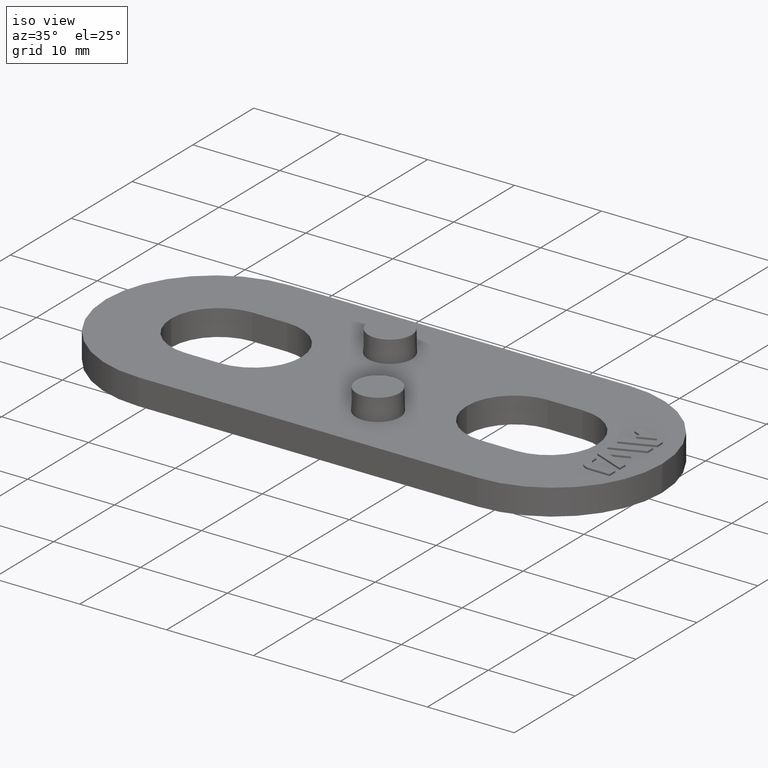
[diagram: clean part render]
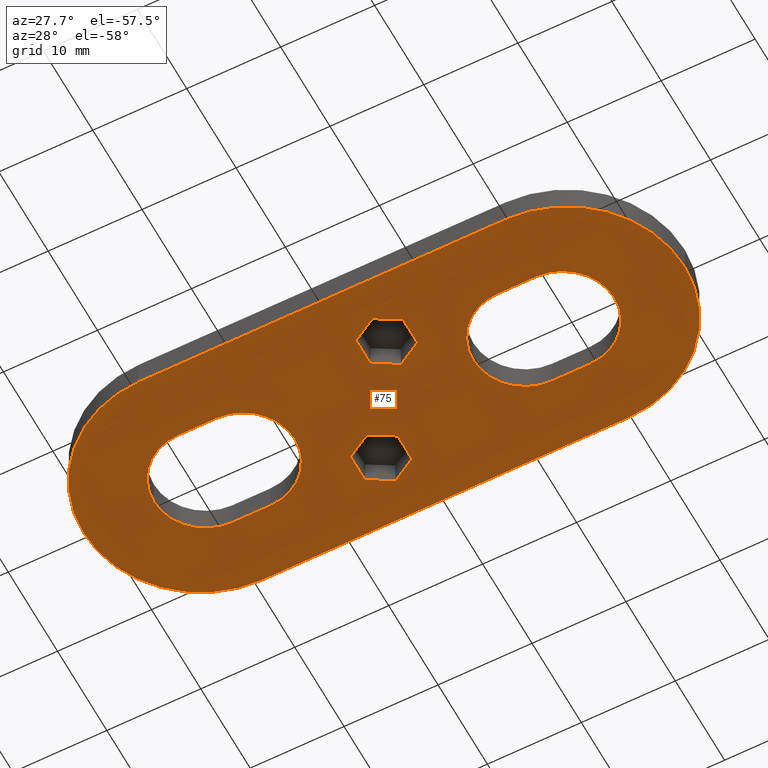
[diagram: tour spotlight — one face highlighted and labeled with its STEP entity id]
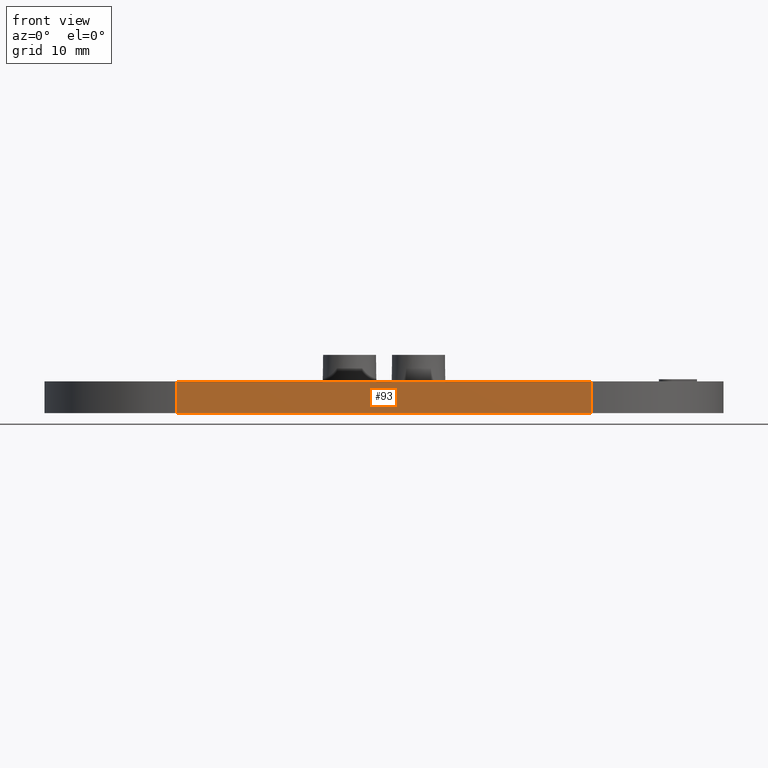
[diagram: tour spotlight — one face highlighted and labeled with its STEP entity id]
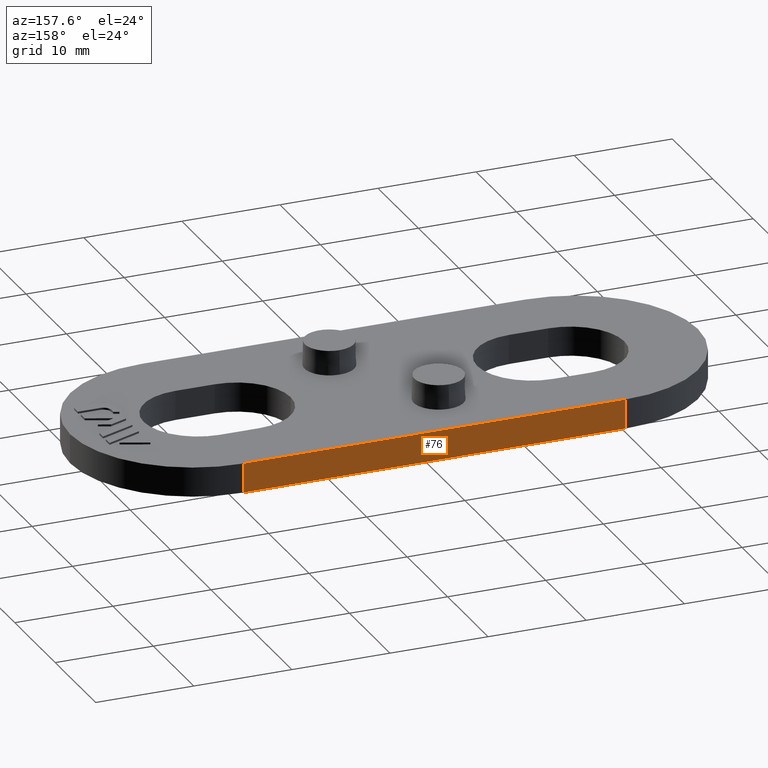
[diagram: tour spotlight — one face highlighted and labeled with its STEP entity id]
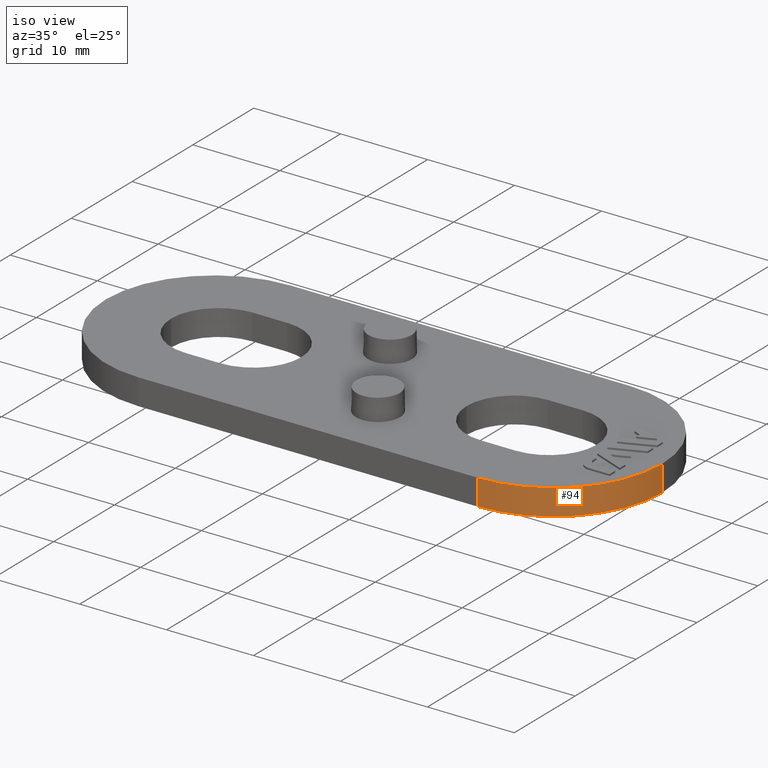
[diagram: tour spotlight — one face highlighted and labeled with its STEP entity id]
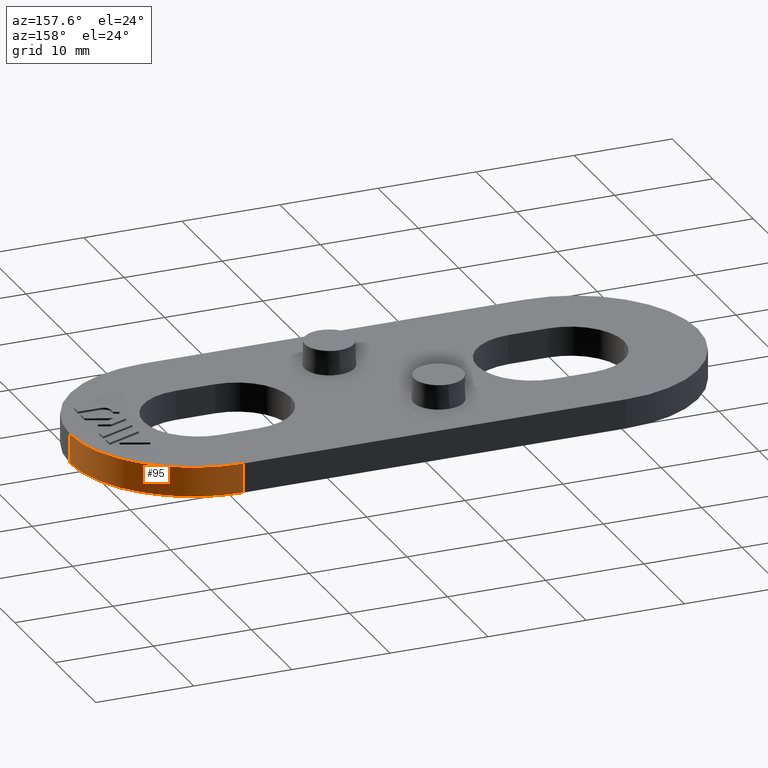
[diagram: tour spotlight — one face highlighted and labeled with its STEP entity id]
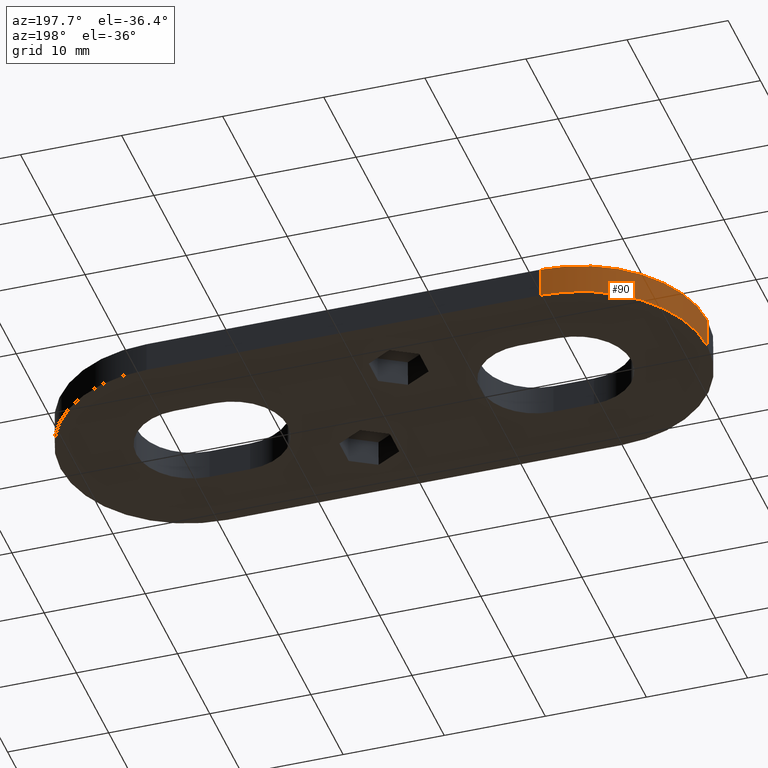
[diagram: tour spotlight — one face highlighted and labeled with its STEP entity id]
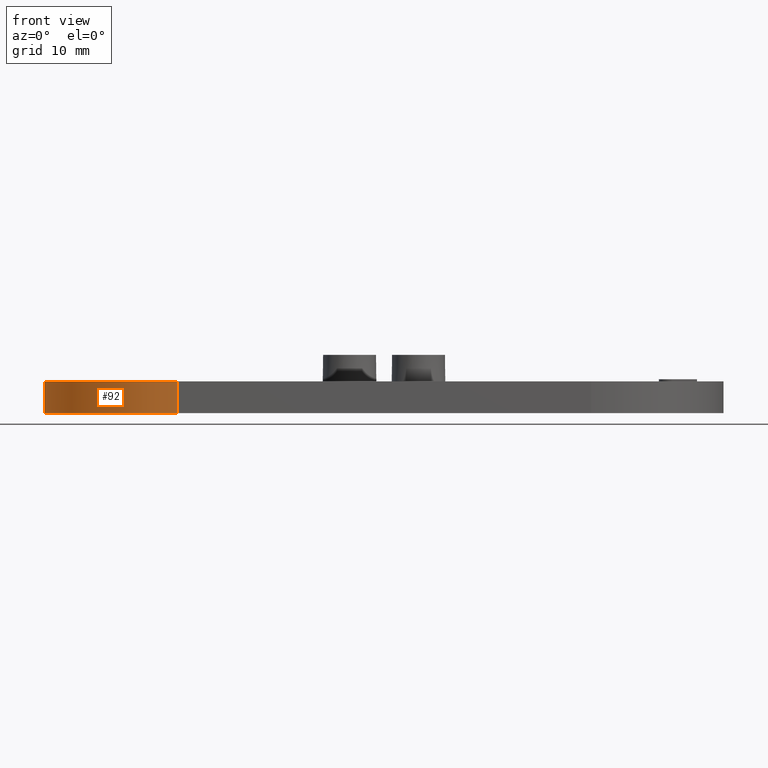
[diagram: tour spotlight — one face highlighted and labeled with its STEP entity id]
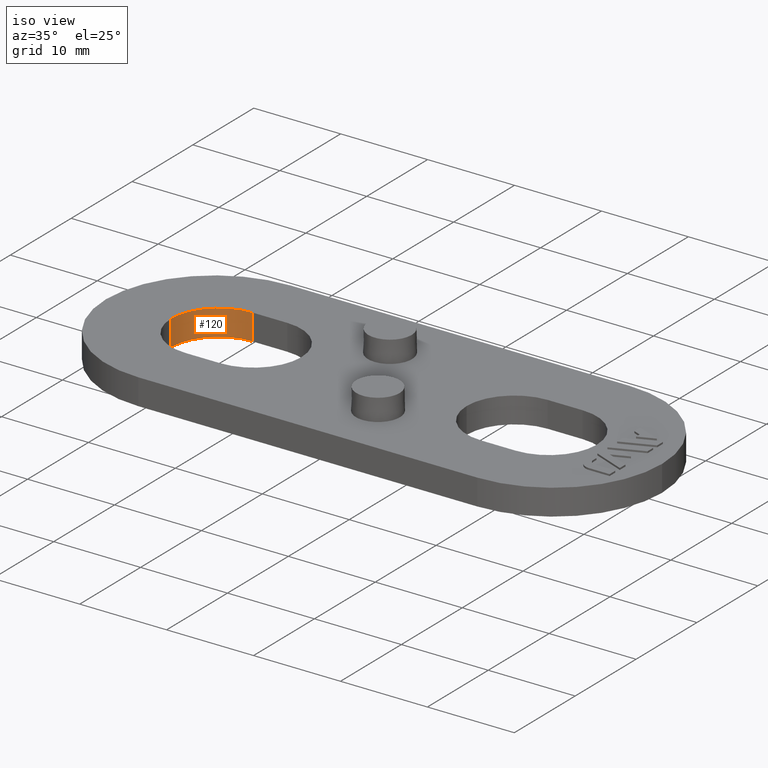
[diagram: tour spotlight — one face highlighted and labeled with its STEP entity id]
A machine part: a face-by-face anatomy tour. The part has 71 B-rep faces; the first image is the clean iso view, then the 8 largest visible faces are spotlighted one at a time (largest first), each with its STEP entity span.

Face 1 — auxiliary view, entity #75. In plain terms, the highlighted planar face has unit normal (0, -0, -1).
Definition (entity closure, byte-faithful):
#75 = ADVANCED_FACE( '', ( #147, #148, #149, #150, #151 ), #152, .T. );
#147 = FACE_BOUND( '', #304, .T. );
#148 = FACE_BOUND( '', #305, .T. );
#149 = FACE_BOUND( '', #306, .T. );
#150 = FACE_OUTER_BOUND( '', #307, .T. );
#151 = FACE_BOUND( '', #308, .T. );
#152 = PLANE( '', #309 );
#304 = EDGE_LOOP( '', ( #461, #462, #463, #464, #465, #466 ) );
#305 = EDGE_LOOP( '', ( #467, #468, #469, #470, #471, #472 ) );
#306 = EDGE_LOOP( '', ( #473, #474, #475, #476, #477, #478 ) );
#307 = EDGE_LOOP( '', ( #479, #480, #481, #482, #483, #484 ) );
#308 = EDGE_LOOP( '', ( #485, #486, #487, #488, #489, #490 ) );
#309 = AXIS2_PLACEMENT_3D( '', #491, #492, #493 );
#461 = ORIENTED_EDGE( '', *, *, #1030, .T. );
#462 = ORIENTED_EDGE( '', *, *, #1031, .T. );
#463 = ORIENTED_EDGE( '', *, *, #1032, .T. );
#464 = ORIENTED_EDGE( '', *, *, #1033, .T. );
#465 = ORIENTED_EDGE( '', *, *, #1034, .T. );
#466 = ORIENTED_EDGE( '', *, *, #1035, .T. );
#467 = ORIENTED_EDGE( '', *, *, #1036, .F. );
#468 = ORIENTED_EDGE( '', *, *, #1037, .F. );
#469 = ORIENTED_EDGE( '', *, *, #1038, .F. );
#470 = ORIENTED_EDGE( '', *, *, #1039, .F. );
#471 = ORIENTED_EDGE( '', *, *, #1040, .F. );
#472 = ORIENTED_EDGE( '', *, *, #1041, .F. );
#473 = ORIENTED_EDGE( '', *, *, #1042, .T. );
#474 = ORIENTED_EDGE( '', *, *, #1043, .T. );
#475 = ORIENTED_EDGE( '', *, *, #1044, .T. );
#476 = ORIENTED_EDGE( '', *, *, #1045, .T. );
#477 = ORIENTED_EDGE( '', *, *, #1046, .T. );
#478 = ORIENTED_EDGE( '', *, *, #1047, .T. );
#479 = ORIENTED_EDGE( '', *, *, #1048, .T. );
#480 = ORIENTED_EDGE( '', *, *, #1049, .T. );
#481 = ORIENTED_EDGE( '', *, *, #1050, .T. );
#482 = ORIENTED_EDGE( '', *, *, #1051, .T. );
#483 = ORIENTED_EDGE( '', *, *, #1052, .T. );
#484 = ORIENTED_EDGE( '', *, *, #1053, .T. );
#485 = ORIENTED_EDGE( '', *, *, #1054, .T. );
#486 = ORIENTED_EDGE( '', *, *, #1055, .T. );
#487 = ORIENTED_EDGE( '', *, *, #1056, .T. );
#488 = ORIENTED_EDGE( '', *, *, #1057, .T. );
#489 = ORIENTED_EDGE( '', *, *, #1058, .T. );
#490 = ORIENTED_EDGE( '', *, *, #1059, .T. );
#491 = CARTESIAN_POINT( '', ( 19.5000000000000, 0.000000000000000, -2.60208521396521E-015 ) );
#492 = DIRECTION( '', ( 0.000000000000000, -6.12303176911189E-017, -1.00000000000000 ) );
#493 = DIRECTION( '', ( 8.93897586159986E-016, 1.00000000000000, -6.12303176911189E-017 ) );
#1030 = EDGE_CURVE( '', #1208, #1209, #1210, .F. );
#1031 = EDGE_CURVE( '', #1209, #1211, #1212, .F. );
#1032 = EDGE_CURVE( '', #1211, #1213, #1214, .F. );
#1033 = EDGE_CURVE( '', #1213, #1215, #1216, .F. );
#1034 = EDGE_CURVE( '', #1215, #1217, #1218, .F. );
#1035 = EDGE_CURVE( '', #1217, #1208, #1219, .F. );
#1036 = EDGE_CURVE( '', #1220, #1221, #1222, .F. );
#1037 = EDGE_CURVE( '', #1223, #1220, #1224, .T. );
#1038 = EDGE_CURVE( '', #1225, #1223, #1226, .F. );
#1039 = EDGE_CURVE( '', #1227, #1225, #1228, .F. );
#1040 = EDGE_CURVE( '', #1229, #1227, #1230, .T. );
#1041 = EDGE_CURVE( '', #1221, #1229, #1231, .F. );
#1042 = EDGE_CURVE( '', #1232, #1233, #1234, .T. );
#1043 = EDGE_CURVE( '', #1233, #1235, #1236, .F. );
#1044 = EDGE_CURVE( '', #1235, #1237, #1238, .T. );
#1045 = EDGE_CURVE( '', #1237, #1239, #1240, .T. );
#1046 = EDGE_CURVE( '', #1239, #1241, #1242, .T. );
#1047 = EDGE_CURVE( '', #1241, #1232, #1243, .T. );
#1048 = EDGE_CURVE( '', #1244, #1245, #1246, .T. );
#1049 = EDGE_CURVE( '', #1245, #1247, #1248, .T. );
#1050 = EDGE_CURVE( '', #1247, #1249, #1250, .T. );
#1051 = EDGE_CURVE( '', #1249, #1251, #1252, .T. );
#1052 = EDGE_CURVE( '', #1251, #1253, #1254, .T. );
#1053 = EDGE_CURVE( '', #1253, #1244, #1255, .T. );
#1054 = EDGE_CURVE( '', #1256, #1257, #1258, .F. );
#1055 = EDGE_CURVE( '', #1257, #1259, #1260, .F. );
#1056 = EDGE_CURVE( '', #1259, #1261, #1262, .F. );
#1057 = EDGE_CURVE( '', #1261, #1263, #1264, .F. );
#1058 = EDGE_CURVE( '', #1263, #1265, #1266, .F. );
#1059 = EDGE_CURVE( '', #1265, #1256, #1267, .F. );
#1208 = VERTEX_POINT( '', #1506 );
#1209 = VERTEX_POINT( '', #1507 );
#1210 = LINE( '', #1508, #1509 );
#1211 = VERTEX_POINT( '', #1510 );
#1212 = LINE( '', #1511, #1512 );
#1213 = VERTEX_POINT( '', #1513 );
#1214 = LINE( '', #1514, #1515 );
#1215 = VERTEX_POINT( '', #1516 );
#1216 = LINE( '', #1517, #1518 );
#1217 = VERTEX_POINT( '', #1519 );
#1218 = LINE( '', #1520, #1521 );
#1219 = LINE( '', #1522, #1523 );
#1220 = VERTEX_POINT( '', #1524 );
#1221 = VERTEX_POINT( '', #1525 );
#1222 = CIRCLE( '', #1526, 5.50000000000000 );
#1223 = VERTEX_POINT( '', #1527 );
#1224 = LINE( '', #1528, #1529 );
#1225 = VERTEX_POINT( '', #1530 );
#1226 = CIRCLE( '', #1531, 5.50000000000000 );
#1227 = VERTEX_POINT( '', #1532 );
#1228 = CIRCLE( '', #1533, 5.50000000000000 );
#1229 = VERTEX_POINT( '', #1534 );
#1230 = LINE( '', #1535, #1536 );
#1231 = CIRCLE( '', #1537, 5.50000000000000 );
#1232 = VERTEX_POINT( '', #1538 );
#1233 = VERTEX_POINT( '', #1539 );
#1234 = CIRCLE( '', #1540, 5.50000000000000 );
#1235 = VERTEX_POINT( '', #1541 );
#1236 = LINE( '', #1542, #1543 );
#1237 = VERTEX_POINT( '', #1544 );
#1238 = CIRCLE( '', #1545, 5.50000000000000 );
#1239 = VERTEX_POINT( '', #1546 );
#1240 = CIRCLE( '', #1547, 5.50000000000000 );
#1241 = VERTEX_POINT( '', #1548 );
#1242 = LINE( '', #1549, #1550 );
#1243 = CIRCLE( '', #1551, 5.50000000000000 );
#1244 = VERTEX_POINT( '', #1552 );
#1245 = VERTEX_POINT( '', #1553 );
#1246 = LINE( '', #1554, #1555 );
#1247 = VERTEX_POINT( '', #1556 );
#1248 = CIRCLE( '', #1557, 12.5000000000000 );
#1249 = VERTEX_POINT( '', #1558 );
#1250 = CIRCLE( '', #1559, 12.5000000000000 );
#1251 = VERTEX_POINT( '', #1560 );
#1252 = LINE( '', #1561, #1562 );
#1253 = VERTEX_POINT( '', #1563 );
#1254 = CIRCLE( '', #1564, 12.5000000000000 );
#1255 = CIRCLE( '', #1565, 12.5000000000000 );
#1256 = VERTEX_POINT( '', #1566 );
#1257 = VERTEX_POINT( '', #1567 );
#1258 = LINE( '', #1568, #1569 );
#1259 = VERTEX_POINT( '', #1570 );
#1260 = LINE( '', #1571, #1572 );
#1261 = VERTEX_POINT( '', #1573 );
#1262 = LINE( '', #1574, #1575 );
#1263 = VERTEX_POINT( '', #1576 );
#1264 = LINE( '', #1577, #1578 );
#1265 = VERTEX_POINT( '', #1579 );
#1266 = LINE( '', #1580, #1581 );
#1267 = LINE( '', #1582, #1583 );
#1506 = CARTESIAN_POINT( '', ( -5.75000000000000, 7.07254079757291, -2.60208521396521E-015 ) );
#1507 = CARTESIAN_POINT( '', ( -5.75000000000000, 4.18578945162478, -2.60208521396521E-015 ) );
#1508 = CARTESIAN_POINT( '', ( -5.75000000000000, 2.74241377865072, -2.60208521396521E-015 ) );
#1509 = VECTOR( '', #1950, 1000.00000000000 );
#1510 = CARTESIAN_POINT( '', ( -3.25000000000000, 2.74241377865072, -2.60208521396521E-015 ) );
#1511 = CARTESIAN_POINT( '', ( -3.25000000000000, 2.74241377865072, -2.60208521396521E-015 ) );
#1512 = VECTOR( '', #1951, 1000.00000000000 );
#1513 = CARTESIAN_POINT( '', ( -0.750000000000000, 4.18578945162478, -2.60208521396521E-015 ) );
#1514 = CARTESIAN_POINT( '', ( -3.25000000000000, 2.74241377865072, -2.60208521396521E-015 ) );
#1515 = VECTOR( '', #1952, 1000.00000000000 );
#1516 = CARTESIAN_POINT( '', ( -0.749999999999998, 7.07254079757291, -2.60208521396521E-015 ) );
#1517 = CARTESIAN_POINT( '', ( -0.750000000000001, 2.74241377865072, -2.60208521396521E-015 ) );
#1518 = VECTOR( '', #1953, 1000.00000000000 );
#1519 = CARTESIAN_POINT( '', ( -3.25000000000000, 8.51591647054697, -2.60208521396521E-015 ) );
#1520 = CARTESIAN_POINT( '', ( -0.750000000000000, 7.07254079757291, -2.60208521396521E-015 ) );
#1521 = VECTOR( '', #1954, 1000.00000000000 );
#1522 = CARTESIAN_POINT( '', ( -5.75000000000000, 7.07254079757291, -2.60208521396521E-015 ) );
#1523 = VECTOR( '', #1955, 1000.00000000000 );
#1524 = CARTESIAN_POINT( '', ( 19.0000000000000, 5.50000000000000, -2.60208521396521E-015 ) );
#1525 = CARTESIAN_POINT( '', ( 24.5000000000000, 0.000000000000000, -2.60208521396521E-015 ) );
#1526 = AXIS2_PLACEMENT_3D( '', #1956, #1957, #1958 );
#1527 = CARTESIAN_POINT( '', ( 15.0000000000000, 5.50000000000000, -2.60208521396521E-015 ) );
#1528 = CARTESIAN_POINT( '', ( 19.0000000000000, 5.50000000000000, -2.60208521396521E-015 ) );
#1529 = VECTOR( '', #1959, 1000.00000000000 );
#1530 = CARTESIAN_POINT( '', ( 9.50000000000000, 0.000000000000000, -2.60208521396521E-015 ) );
#1531 = AXIS2_PLACEMENT_3D( '', #1960, #1961, #1962 );
#1532 = CARTESIAN_POINT( '', ( 15.0000000000000, -5.49999999999999, -2.60208521396521E-015 ) );
#1533 = AXIS2_PLACEMENT_3D( '', #1963, #1964, #1965 );
#1534 = CARTESIAN_POINT( '', ( 19.0000000000000, -5.49999999999999, -2.60208521396521E-015 ) );
#1535 = CARTESIAN_POINT( '', ( 15.0000000000000, -5.49999999999999, -2.60208521396521E-015 ) );
#1536 = VECTOR( '', #1966, 1000.00000000000 );
#1537 = AXIS2_PLACEMENT_3D( '', #1967, #1968, #1969 );
#1538 = CARTESIAN_POINT( '', ( -9.50000000000000, -6.93889390390723E-015, -2.60208521396521E-015 ) );
#1539 = CARTESIAN_POINT( '', ( -15.0000000000000, 5.49999999999999, -2.60208521396521E-015 ) );
#1540 = AXIS2_PLACEMENT_3D( '', #1970, #1971, #1972 );
#1541 = CARTESIAN_POINT( '', ( -19.0000000000000, 5.50000000000000, -2.60208521396521E-015 ) );
#1542 = CARTESIAN_POINT( '', ( 19.5000000000000, 5.49999999999996, -2.60208521396521E-015 ) );
#1543 = VECTOR( '', #1973, 1000.00000000000 );
#1544 = CARTESIAN_POINT( '', ( -24.5000000000000, 0.000000000000000, -2.60208521396521E-015 ) );
#1545 = AXIS2_PLACEMENT_3D( '', #1974, #1975, #1976 );
#1546 = CARTESIAN_POINT( '', ( -19.0000000000000, -5.49999999999999, -2.60208521396521E-015 ) );
#1547 = AXIS2_PLACEMENT_3D( '', #1977, #1978, #1979 );
#1548 = CARTESIAN_POINT( '', ( -15.0000000000000, -5.50000000000001, -2.60208521396521E-015 ) );
#1549 = CARTESIAN_POINT( '', ( 19.5000000000000, -5.50000000000003, -2.60208521396521E-015 ) );
#1550 = VECTOR( '', #1980, 1000.00000000000 );
#1551 = AXIS2_PLACEMENT_3D( '', #1981, #1982, #1983 );
#1552 = CARTESIAN_POINT( '', ( -19.5000000000000, 12.5000000000000, -2.60208521396521E-015 ) );
#1553 = CARTESIAN_POINT( '', ( 19.5000000000000, 12.5000000000000, -2.60208521396521E-015 ) );
#1554 = CARTESIAN_POINT( '', ( -19.5000000000000, 12.5000000000000, -2.60208521396521E-015 ) );
#1555 = VECTOR( '', #1984, 1000.00000000000 );
#1556 = CARTESIAN_POINT( '', ( 32.0000000000000, 0.000000000000000, -2.60208521396521E-015 ) );
#1557 = AXIS2_PLACEMENT_3D( '', #1985, #1986, #1987 );
#1558 = CARTESIAN_POINT( '', ( 19.5000000000000, -12.5000000000000, -2.60208521396521E-015 ) );
#1559 = AXIS2_PLACEMENT_3D( '', #1988, #1989, #1990 );
#1560 = CARTESIAN_POINT( '', ( -19.5000000000000, -12.5000000000000, -2.60208521396521E-015 ) );
#1561 = CARTESIAN_POINT( '', ( 19.5000000000000, -12.5000000000000, -2.60208521396521E-015 ) );
#1562 = VECTOR( '', #1991, 1000.00000000000 );
#1563 = CARTESIAN_POINT( '', ( -32.0000000000000, -6.93889390390723E-015, -2.60208521396521E-015 ) );
#1564 = AXIS2_PLACEMENT_3D( '', #1992, #1993, #1994 );
#1565 = AXIS2_PLACEMENT_3D( '', #1995, #1996, #1997 );
#1566 = CARTESIAN_POINT( '', ( 0.750000000000001, -7.07254079757293, -2.60208521396521E-015 ) );
#1567 = CARTESIAN_POINT( '', ( 3.25000000000000, -8.51591647054699, -2.60208521396521E-015 ) );
#1568 = CARTESIAN_POINT( '', ( -6.50000000000000, -2.88675134594814, -2.60208521396521E-015 ) );
#1569 = VECTOR( '', #1998, 1000.00000000000 );
#1570 = CARTESIAN_POINT( '', ( 5.75000000000000, -7.07254079757293, -2.60208521396521E-015 ) );
#1571 = CARTESIAN_POINT( '', ( 3.25000000000000, -8.51591647054699, -2.60208521396521E-015 ) );
#1572 = VECTOR( '', #1999, 1000.00000000000 );
#1573 = CARTESIAN_POINT( '', ( 5.75000000000000, -4.18578945162479, -2.60208521396521E-015 ) );
#1574 = CARTESIAN_POINT( '', ( 5.75000000000000, 2.74241377865073, -2.60208521396521E-015 ) );
#1575 = VECTOR( '', #2000, 1000.00000000000 );
#1576 = CARTESIAN_POINT( '', ( 3.25000000000000, -2.74241377865073, -2.60208521396521E-015 ) );
#1577 = CARTESIAN_POINT( '', ( -4.00000000000000, 1.44337567297406, -2.60208521396521E-015 ) );
#1578 = VECTOR( '', #2001, 1000.00000000000 );
#1579 = CARTESIAN_POINT( '', ( 0.750000000000002, -4.18578945162479, -2.60208521396521E-015 ) );
#1580 = CARTESIAN_POINT( '', ( 0.749999999999998, -4.18578945162479, -2.60208521396521E-015 ) );
#1581 = VECTOR( '', #2002, 1000.00000000000 );
#1582 = CARTESIAN_POINT( '', ( 0.750000000000002, 2.74241377865072, -2.60208521396521E-015 ) );
#1583 = VECTOR( '', #2003, 1000.00000000000 );
#1950 = DIRECTION( '', ( -2.77555756156289E-016, 1.00000000000000, -6.12303176911189E-017 ) );
#1951 = DIRECTION( '', ( -0.866025403784439, 0.500000000000000, -3.06151588455594E-017 ) );
#1952 = DIRECTION( '', ( -0.866025403784439, -0.500000000000000, 3.06151588455594E-017 ) );
#1953 = DIRECTION( '', ( -4.99600361081321E-016, -1.00000000000000, 6.12303176911189E-017 ) );
#1954 = DIRECTION( '', ( 0.866025403784439, -0.500000000000000, 3.06151588455594E-017 ) );
#1955 = DIRECTION( '', ( 0.866025403784438, 0.500000000000000, -3.06151588455595E-017 ) );
#1956 = CARTESIAN_POINT( '', ( 19.0000000000000, 0.000000000000000, -2.60208521396521E-015 ) );
#1957 = DIRECTION( '', ( 0.000000000000000, 6.12303176911189E-017, 1.00000000000000 ) );
#1958 = DIRECTION( '', ( 0.000000000000000, -1.00000000000000, 6.12303176911189E-017 ) );
#1959 = DIRECTION( '', ( 1.00000000000000, 5.78241158658936E-017, -3.54058898467673E-033 ) );
#1960 = CARTESIAN_POINT( '', ( 15.0000000000000, 0.000000000000000, -2.60208521396521E-015 ) );
#1961 = DIRECTION( '', ( 0.000000000000000, 6.12303176911189E-017, 1.00000000000000 ) );
#1962 = DIRECTION( '', ( 0.000000000000000, -1.00000000000000, 6.12303176911189E-017 ) );
#1963 = CARTESIAN_POINT( '', ( 15.0000000000000, 0.000000000000000, -2.60208521396521E-015 ) );
#1964 = DIRECTION( '', ( 0.000000000000000, 6.12303176911189E-017, 1.00000000000000 ) );
#1965 = DIRECTION( '', ( 0.000000000000000, -1.00000000000000, 6.12303176911189E-017 ) );
#1966 = DIRECTION( '', ( -1.00000000000000, -5.78241158658936E-017, 3.54058898467673E-033 ) );
#1967 = CARTESIAN_POINT( '', ( 19.0000000000000, 0.000000000000000, -2.60208521396521E-015 ) );
#1968 = DIRECTION( '', ( 0.000000000000000, 6.12303176911189E-017, 1.00000000000000 ) );
#1969 = DIRECTION( '', ( 0.000000000000000, -1.00000000000000, 6.12303176911189E-017 ) );
#1970 = CARTESIAN_POINT( '', ( -15.0000000000000, 0.000000000000000, -2.60208521396521E-015 ) );
#1971 = DIRECTION( '', ( 0.000000000000000, 6.12303176911189E-017, 1.00000000000000 ) );
#1972 = DIRECTION( '', ( 0.000000000000000, -1.00000000000000, 6.12303176911189E-017 ) );
#1973 = DIRECTION( '', ( 1.00000000000000, -8.93897586159986E-016, 5.47336331839003E-032 ) );
#1974 = CARTESIAN_POINT( '', ( -19.0000000000000, -6.93889390390723E-015, -2.60208521396521E-015 ) );
#1975 = DIRECTION( '', ( 0.000000000000000, 6.12303176911189E-017, 1.00000000000000 ) );
#1976 = DIRECTION( '', ( 0.000000000000000, -1.00000000000000, 6.12303176911189E-017 ) );
#1977 = CARTESIAN_POINT( '', ( -19.0000000000000, 0.000000000000000, -2.60208521396521E-015 ) );
#1978 = DIRECTION( '', ( 0.000000000000000, 6.12303176911189E-017, 1.00000000000000 ) );
#1979 = DIRECTION( '', ( 0.000000000000000, -1.00000000000000, 6.12303176911189E-017 ) );
#1980 = DIRECTION( '', ( 1.00000000000000, -8.93897586159986E-016, 5.47336331839003E-032 ) );
#1981 = CARTESIAN_POINT( '', ( -15.0000000000000, 0.000000000000000, -2.60208521396521E-015 ) );
#1982 = DIRECTION( '', ( 0.000000000000000, 6.12303176911189E-017, 1.00000000000000 ) );
#1983 = DIRECTION( '', ( 0.000000000000000, -1.00000000000000, 6.12303176911189E-017 ) );
#1984 = DIRECTION( '', ( 1.00000000000000, 0.000000000000000, 0.000000000000000 ) );
#1985 = CARTESIAN_POINT( '', ( 19.5000000000000, 0.000000000000000, -2.60208521396521E-015 ) );
#1986 = DIRECTION( '', ( 0.000000000000000, -6.12303176911189E-017, -1.00000000000000 ) );
#1987 = DIRECTION( '', ( 6.12303176911188E-017, 1.00000000000000, -6.12303176911189E-017 ) );
#1988 = CARTESIAN_POINT( '', ( 19.5000000000000, 0.000000000000000, -2.60208521396521E-015 ) );
#1989 = DIRECTION( '', ( 5.60519385729927E-049, -6.12303176911189E-017, -1.00000000000000 ) );
#1990 = DIRECTION( '', ( 6.12303176911191E-017, 1.00000000000000, -6.12303176911189E-017 ) );
#1991 = DIRECTION( '', ( -1.00000000000000, 0.000000000000000, 0.000000000000000 ) );
#1992 = CARTESIAN_POINT( '', ( -19.5000000000000, -6.93889390390723E-015, -2.60208521396521E-015 ) );
#1993 = DIRECTION( '', ( 0.000000000000000, -6.12303176911189E-017, -1.00000000000000 ) );
#1994 = DIRECTION( '', ( -2.16325438465170E-016, 1.00000000000000, -6.12303176911189E-017 ) );
#1995 = CARTESIAN_POINT( '', ( -19.5000000000000, 0.000000000000000, -2.60208521396521E-015 ) );
#1996 = DIRECTION( '', ( 0.000000000000000, -6.12303176911189E-017, -1.00000000000000 ) );
#1997 = DIRECTION( '', ( -2.16325438465170E-016, 1.00000000000000, -6.12303176911189E-017 ) );
#1998 = DIRECTION( '', ( -0.866025403784439, 0.500000000000000, -3.06151588455594E-017 ) );
#1999 = DIRECTION( '', ( -0.866025403784439, -0.500000000000000, 3.06151588455594E-017 ) );
#2000 = DIRECTION( '', ( 6.10622663543836E-016, -1.00000000000000, 6.12303176911189E-017 ) );
#2001 = DIRECTION( '', ( 0.866025403784439, -0.500000000000000, 3.06151588455594E-017 ) );
#2002 = DIRECTION( '', ( 0.866025403784439, 0.500000000000000, -3.06151588455594E-017 ) );
#2003 = DIRECTION( '', ( 5.55111512312578E-017, 1.00000000000000, -6.12303176911189E-017 ) );

Face 2 — front view, entity #93. In plain terms, the highlighted planar face has unit normal (0, 1, -0).
Definition (entity closure, byte-faithful):
#93 = ADVANCED_FACE( '', ( #196 ), #197, .F. );
#196 = FACE_OUTER_BOUND( '', #353, .T. );
#197 = PLANE( '', #354 );
#353 = EDGE_LOOP( '', ( #661, #662, #663, #664 ) );
#354 = AXIS2_PLACEMENT_3D( '', #665, #666, #667 );
#661 = ORIENTED_EDGE( '', *, *, #1106, .T. );
#662 = ORIENTED_EDGE( '', *, *, #1133, .F. );
#663 = ORIENTED_EDGE( '', *, *, #1051, .F. );
#664 = ORIENTED_EDGE( '', *, *, #1134, .T. );
#665 = CARTESIAN_POINT( '', ( 19.5000000000000, -12.5000000000000, -2.60208521396521E-015 ) );
#666 = DIRECTION( '', ( 0.000000000000000, 1.00000000000000, -6.12303176911189E-017 ) );
#667 = DIRECTION( '', ( 1.00000000000000, 0.000000000000000, 0.000000000000000 ) );
#1051 = EDGE_CURVE( '', #1249, #1251, #1252, .T. );
#1106 = EDGE_CURVE( '', #1357, #1355, #1358, .T. );
#1133 = EDGE_CURVE( '', #1251, #1355, #1397, .T. );
#1134 = EDGE_CURVE( '', #1249, #1357, #1398, .T. );
#1249 = VERTEX_POINT( '', #1558 );
#1251 = VERTEX_POINT( '', #1560 );
#1252 = LINE( '', #1561, #1562 );
#1355 = VERTEX_POINT( '', #1706 );
#1357 = VERTEX_POINT( '', #1708 );
#1358 = LINE( '', #1709, #1710 );
#1397 = LINE( '', #1768, #1769 );
#1398 = LINE( '', #1770, #1771 );
#1558 = CARTESIAN_POINT( '', ( 19.5000000000000, -12.5000000000000, -2.60208521396521E-015 ) );
#1560 = CARTESIAN_POINT( '', ( -19.5000000000000, -12.5000000000000, -2.60208521396521E-015 ) );
#1561 = CARTESIAN_POINT( '', ( 19.5000000000000, -12.5000000000000, -2.60208521396521E-015 ) );
#1562 = VECTOR( '', #1991, 1000.00000000000 );
#1706 = CARTESIAN_POINT( '', ( -19.5000000000000, -12.5000000000000, 3.00000000000000 ) );
#1708 = CARTESIAN_POINT( '', ( 19.5000000000000, -12.5000000000000, 3.00000000000000 ) );
#1709 = CARTESIAN_POINT( '', ( 19.5000000000000, -12.5000000000000, 3.00000000000000 ) );
#1710 = VECTOR( '', #2072, 1000.00000000000 );
#1768 = CARTESIAN_POINT( '', ( -19.5000000000000, -12.5000000000000, -2.60208521396521E-015 ) );
#1769 = VECTOR( '', #2113, 1000.00000000000 );
#1770 = CARTESIAN_POINT( '', ( 19.5000000000000, -12.5000000000000, -2.60208521396521E-015 ) );
#1771 = VECTOR( '', #2114, 1000.00000000000 );
#1991 = DIRECTION( '', ( -1.00000000000000, 0.000000000000000, 0.000000000000000 ) );
#2072 = DIRECTION( '', ( -1.00000000000000, 0.000000000000000, 0.000000000000000 ) );
#2113 = DIRECTION( '', ( 0.000000000000000, 6.12303176911189E-017, 1.00000000000000 ) );
#2114 = DIRECTION( '', ( 0.000000000000000, 6.12303176911189E-017, 1.00000000000000 ) );

Face 3 — auxiliary view, entity #76. In plain terms, the highlighted planar face has unit normal (0, -1, 0).
Definition (entity closure, byte-faithful):
#76 = ADVANCED_FACE( '', ( #153 ), #154, .F. );
#153 = FACE_OUTER_BOUND( '', #310, .T. );
#154 = PLANE( '', #311 );
#310 = EDGE_LOOP( '', ( #494, #495, #496, #497 ) );
#311 = AXIS2_PLACEMENT_3D( '', #498, #499, #500 );
#494 = ORIENTED_EDGE( '', *, *, #1060, .T. );
#495 = ORIENTED_EDGE( '', *, *, #1061, .F. );
#496 = ORIENTED_EDGE( '', *, *, #1048, .F. );
#497 = ORIENTED_EDGE( '', *, *, #1062, .T. );
#498 = CARTESIAN_POINT( '', ( -19.5000000000000, 12.5000000000000, -2.60208521396521E-015 ) );
#499 = DIRECTION( '', ( 0.000000000000000, -1.00000000000000, 6.12303176911189E-017 ) );
#500 = DIRECTION( '', ( -1.00000000000000, 0.000000000000000, 0.000000000000000 ) );
#1048 = EDGE_CURVE( '', #1244, #1245, #1246, .T. );
#1060 = EDGE_CURVE( '', #1268, #1269, #1270, .T. );
#1061 = EDGE_CURVE( '', #1245, #1269, #1271, .T. );
#1062 = EDGE_CURVE( '', #1244, #1268, #1272, .T. );
#1244 = VERTEX_POINT( '', #1552 );
#1245 = VERTEX_POINT( '', #1553 );
#1246 = LINE( '', #1554, #1555 );
#1268 = VERTEX_POINT( '', #1584 );
#1269 = VERTEX_POINT( '', #1585 );
#1270 = LINE( '', #1586, #1587 );
#1271 = LINE( '', #1588, #1589 );
#1272 = LINE( '', #1590, #1591 );
#1552 = CARTESIAN_POINT( '', ( -19.5000000000000, 12.5000000000000, -2.60208521396521E-015 ) );
#1553 = CARTESIAN_POINT( '', ( 19.5000000000000, 12.5000000000000, -2.60208521396521E-015 ) );
#1554 = CARTESIAN_POINT( '', ( -19.5000000000000, 12.5000000000000, -2.60208521396521E-015 ) );
#1555 = VECTOR( '', #1984, 1000.00000000000 );
#1584 = CARTESIAN_POINT( '', ( -19.5000000000000, 12.5000000000000, 3.00000000000000 ) );
#1585 = CARTESIAN_POINT( '', ( 19.5000000000000, 12.5000000000000, 3.00000000000000 ) );
#1586 = CARTESIAN_POINT( '', ( -19.5000000000000, 12.5000000000000, 3.00000000000000 ) );
#1587 = VECTOR( '', #2004, 1000.00000000000 );
#1588 = CARTESIAN_POINT( '', ( 19.5000000000000, 12.5000000000000, -2.60208521396521E-015 ) );
#1589 = VECTOR( '', #2005, 1000.00000000000 );
#1590 = CARTESIAN_POINT( '', ( -19.5000000000000, 12.5000000000000, -2.60208521396521E-015 ) );
#1591 = VECTOR( '', #2006, 1000.00000000000 );
#1984 = DIRECTION( '', ( 1.00000000000000, 0.000000000000000, 0.000000000000000 ) );
#2004 = DIRECTION( '', ( 1.00000000000000, 0.000000000000000, 0.000000000000000 ) );
#2005 = DIRECTION( '', ( 0.000000000000000, 6.12303176911189E-017, 1.00000000000000 ) );
#2006 = DIRECTION( '', ( 0.000000000000000, 6.12303176911189E-017, 1.00000000000000 ) );

Face 4 — iso view, entity #94. In plain terms, the highlighted cylindrical surface (partial cylindrical patch) has radius 12.5 mm, axis along (0, -0, -1).
Definition (entity closure, byte-faithful):
#94 = ADVANCED_FACE( '', ( #198 ), #199, .T. );
#198 = FACE_OUTER_BOUND( '', #355, .T. );
#199 = CYLINDRICAL_SURFACE( '', #356, 12.5000000000000 );
#355 = EDGE_LOOP( '', ( #668, #669, #670, #671 ) );
#356 = AXIS2_PLACEMENT_3D( '', #672, #673, #674 );
#668 = ORIENTED_EDGE( '', *, *, #1107, .T. );
#669 = ORIENTED_EDGE( '', *, *, #1134, .F. );
#670 = ORIENTED_EDGE( '', *, *, #1050, .F. );
#671 = ORIENTED_EDGE( '', *, *, #1135, .T. );
#672 = CARTESIAN_POINT( '', ( 19.5000000000000, 0.000000000000000, -2.60208521396521E-015 ) );
#673 = DIRECTION( '', ( 0.000000000000000, -6.12303176911189E-017, -1.00000000000000 ) );
#674 = DIRECTION( '', ( -8.93897586159986E-016, -1.00000000000000, 6.12303176911189E-017 ) );
#1050 = EDGE_CURVE( '', #1247, #1249, #1250, .T. );
#1107 = EDGE_CURVE( '', #1359, #1357, #1360, .T. );
#1134 = EDGE_CURVE( '', #1249, #1357, #1398, .T. );
#1135 = EDGE_CURVE( '', #1247, #1359, #1399, .T. );
#1247 = VERTEX_POINT( '', #1556 );
#1249 = VERTEX_POINT( '', #1558 );
#1250 = CIRCLE( '', #1559, 12.5000000000000 );
#1357 = VERTEX_POINT( '', #1708 );
#1359 = VERTEX_POINT( '', #1711 );
#1360 = CIRCLE( '', #1712, 12.5000000000000 );
#1398 = LINE( '', #1770, #1771 );
#1399 = LINE( '', #1772, #1773 );
#1556 = CARTESIAN_POINT( '', ( 32.0000000000000, 0.000000000000000, -2.60208521396521E-015 ) );
#1558 = CARTESIAN_POINT( '', ( 19.5000000000000, -12.5000000000000, -2.60208521396521E-015 ) );
#1559 = AXIS2_PLACEMENT_3D( '', #1988, #1989, #1990 );
#1708 = CARTESIAN_POINT( '', ( 19.5000000000000, -12.5000000000000, 3.00000000000000 ) );
#1711 = CARTESIAN_POINT( '', ( 32.0000000000000, 0.000000000000000, 3.00000000000000 ) );
#1712 = AXIS2_PLACEMENT_3D( '', #2073, #2074, #2075 );
#1770 = CARTESIAN_POINT( '', ( 19.5000000000000, -12.5000000000000, -2.60208521396521E-015 ) );
#1771 = VECTOR( '', #2114, 1000.00000000000 );
#1772 = CARTESIAN_POINT( '', ( 32.0000000000000, 0.000000000000000, -2.60208521396521E-015 ) );
#1773 = VECTOR( '', #2115, 1000.00000000000 );
#1988 = CARTESIAN_POINT( '', ( 19.5000000000000, 0.000000000000000, -2.60208521396521E-015 ) );
#1989 = DIRECTION( '', ( 5.60519385729927E-049, -6.12303176911189E-017, -1.00000000000000 ) );
#1990 = DIRECTION( '', ( 6.12303176911191E-017, 1.00000000000000, -6.12303176911189E-017 ) );
#2073 = CARTESIAN_POINT( '', ( 19.5000000000000, 0.000000000000000, 3.00000000000000 ) );
#2074 = DIRECTION( '', ( 5.60519385729927E-049, -6.12303176911189E-017, -1.00000000000000 ) );
#2075 = DIRECTION( '', ( 6.12303176911191E-017, 1.00000000000000, -6.12303176911189E-017 ) );
#2114 = DIRECTION( '', ( 0.000000000000000, 6.12303176911189E-017, 1.00000000000000 ) );
#2115 = DIRECTION( '', ( 0.000000000000000, 6.12303176911189E-017, 1.00000000000000 ) );

Face 5 — auxiliary view, entity #95. In plain terms, the highlighted cylindrical surface (partial cylindrical patch) has radius 12.5 mm, axis along (0, -0, -1).
Definition (entity closure, byte-faithful):
#95 = ADVANCED_FACE( '', ( #200 ), #201, .T. );
#200 = FACE_OUTER_BOUND( '', #357, .T. );
#201 = CYLINDRICAL_SURFACE( '', #358, 12.5000000000000 );
#357 = EDGE_LOOP( '', ( #675, #676, #677, #678 ) );
#358 = AXIS2_PLACEMENT_3D( '', #679, #680, #681 );
#675 = ORIENTED_EDGE( '', *, *, #1108, .T. );
#676 = ORIENTED_EDGE( '', *, *, #1135, .F. );
#677 = ORIENTED_EDGE( '', *, *, #1049, .F. );
#678 = ORIENTED_EDGE( '', *, *, #1061, .T. );
#679 = CARTESIAN_POINT( '', ( 19.5000000000000, 0.000000000000000, -2.60208521396521E-015 ) );
#680 = DIRECTION( '', ( 0.000000000000000, -6.12303176911189E-017, -1.00000000000000 ) );
#681 = DIRECTION( '', ( -8.93897586159986E-016, -1.00000000000000, 6.12303176911189E-017 ) );
#1049 = EDGE_CURVE( '', #1245, #1247, #1248, .T. );
#1061 = EDGE_CURVE( '', #1245, #1269, #1271, .T. );
#1108 = EDGE_CURVE( '', #1269, #1359, #1361, .T. );
#1135 = EDGE_CURVE( '', #1247, #1359, #1399, .T. );
#1245 = VERTEX_POINT( '', #1553 );
#1247 = VERTEX_POINT( '', #1556 );
#1248 = CIRCLE( '', #1557, 12.5000000000000 );
#1269 = VERTEX_POINT( '', #1585 );
#1271 = LINE( '', #1588, #1589 );
#1359 = VERTEX_POINT( '', #1711 );
#1361 = CIRCLE( '', #1713, 12.5000000000000 );
#1399 = LINE( '', #1772, #1773 );
#1553 = CARTESIAN_POINT( '', ( 19.5000000000000, 12.5000000000000, -2.60208521396521E-015 ) );
#1556 = CARTESIAN_POINT( '', ( 32.0000000000000, 0.000000000000000, -2.60208521396521E-015 ) );
#1557 = AXIS2_PLACEMENT_3D( '', #1985, #1986, #1987 );
#1585 = CARTESIAN_POINT( '', ( 19.5000000000000, 12.5000000000000, 3.00000000000000 ) );
#1588 = CARTESIAN_POINT( '', ( 19.5000000000000, 12.5000000000000, -2.60208521396521E-015 ) );
#1589 = VECTOR( '', #2005, 1000.00000000000 );
#1711 = CARTESIAN_POINT( '', ( 32.0000000000000, 0.000000000000000, 3.00000000000000 ) );
#1713 = AXIS2_PLACEMENT_3D( '', #2076, #2077, #2078 );
#1772 = CARTESIAN_POINT( '', ( 32.0000000000000, 0.000000000000000, -2.60208521396521E-015 ) );
#1773 = VECTOR( '', #2115, 1000.00000000000 );
#1985 = CARTESIAN_POINT( '', ( 19.5000000000000, 0.000000000000000, -2.60208521396521E-015 ) );
#1986 = DIRECTION( '', ( 0.000000000000000, -6.12303176911189E-017, -1.00000000000000 ) );
#1987 = DIRECTION( '', ( 6.12303176911188E-017, 1.00000000000000, -6.12303176911189E-017 ) );
#2005 = DIRECTION( '', ( 0.000000000000000, 6.12303176911189E-017, 1.00000000000000 ) );
#2076 = CARTESIAN_POINT( '', ( 19.5000000000000, 0.000000000000000, 3.00000000000000 ) );
#2077 = DIRECTION( '', ( 0.000000000000000, -6.12303176911189E-017, -1.00000000000000 ) );
#2078 = DIRECTION( '', ( 6.12303176911188E-017, 1.00000000000000, -6.12303176911189E-017 ) );
#2115 = DIRECTION( '', ( 0.000000000000000, 6.12303176911189E-017, 1.00000000000000 ) );

Face 6 — auxiliary view, entity #90. In plain terms, the highlighted cylindrical surface (partial cylindrical patch) has radius 12.5 mm, axis along (0, -0, -1).
Definition (entity closure, byte-faithful):
#90 = ADVANCED_FACE( '', ( #190 ), #191, .T. );
#190 = FACE_OUTER_BOUND( '', #347, .T. );
#191 = CYLINDRICAL_SURFACE( '', #348, 12.5000000000000 );
#347 = EDGE_LOOP( '', ( #640, #641, #642, #643 ) );
#348 = AXIS2_PLACEMENT_3D( '', #644, #645, #646 );
#640 = ORIENTED_EDGE( '', *, *, #1104, .T. );
#641 = ORIENTED_EDGE( '', *, *, #1062, .F. );
#642 = ORIENTED_EDGE( '', *, *, #1053, .F. );
#643 = ORIENTED_EDGE( '', *, *, #1130, .T. );
#644 = CARTESIAN_POINT( '', ( -19.5000000000000, 0.000000000000000, -2.60208521396521E-015 ) );
#645 = DIRECTION( '', ( 0.000000000000000, -6.12303176911189E-017, -1.00000000000000 ) );
#646 = DIRECTION( '', ( -8.93897586159986E-016, -1.00000000000000, 6.12303176911189E-017 ) );
#1053 = EDGE_CURVE( '', #1253, #1244, #1255, .T. );
#1062 = EDGE_CURVE( '', #1244, #1268, #1272, .T. );
#1104 = EDGE_CURVE( '', #1353, #1268, #1354, .T. );
#1130 = EDGE_CURVE( '', #1253, #1353, #1394, .T. );
#1244 = VERTEX_POINT( '', #1552 );
#1253 = VERTEX_POINT( '', #1563 );
#1255 = CIRCLE( '', #1565, 12.5000000000000 );
#1268 = VERTEX_POINT( '', #1584 );
#1272 = LINE( '', #1590, #1591 );
#1353 = VERTEX_POINT( '', #1704 );
#1354 = CIRCLE( '', #1705, 12.5000000000000 );
#1394 = LINE( '', #1762, #1763 );
#1552 = CARTESIAN_POINT( '', ( -19.5000000000000, 12.5000000000000, -2.60208521396521E-015 ) );
#1563 = CARTESIAN_POINT( '', ( -32.0000000000000, -6.93889390390723E-015, -2.60208521396521E-015 ) );
#1565 = AXIS2_PLACEMENT_3D( '', #1995, #1996, #1997 );
#1584 = CARTESIAN_POINT( '', ( -19.5000000000000, 12.5000000000000, 3.00000000000000 ) );
#1590 = CARTESIAN_POINT( '', ( -19.5000000000000, 12.5000000000000, -2.60208521396521E-015 ) );
#1591 = VECTOR( '', #2006, 1000.00000000000 );
#1704 = CARTESIAN_POINT( '', ( -32.0000000000000, -6.93889390390723E-015, 3.00000000000000 ) );
#1705 = AXIS2_PLACEMENT_3D( '', #2066, #2067, #2068 );
#1762 = CARTESIAN_POINT( '', ( -32.0000000000000, -6.93889390390723E-015, -2.60208521396521E-015 ) );
#1763 = VECTOR( '', #2110, 1000.00000000000 );
#1995 = CARTESIAN_POINT( '', ( -19.5000000000000, 0.000000000000000, -2.60208521396521E-015 ) );
#1996 = DIRECTION( '', ( 0.000000000000000, -6.12303176911189E-017, -1.00000000000000 ) );
#1997 = DIRECTION( '', ( -2.16325438465170E-016, 1.00000000000000, -6.12303176911189E-017 ) );
#2006 = DIRECTION( '', ( 0.000000000000000, 6.12303176911189E-017, 1.00000000000000 ) );
#2066 = CARTESIAN_POINT( '', ( -19.5000000000000, 0.000000000000000, 3.00000000000000 ) );
#2067 = DIRECTION( '', ( 0.000000000000000, -6.12303176911189E-017, -1.00000000000000 ) );
#2068 = DIRECTION( '', ( -2.16325438465170E-016, 1.00000000000000, -6.12303176911189E-017 ) );
#2110 = DIRECTION( '', ( 0.000000000000000, 6.12303176911189E-017, 1.00000000000000 ) );

Face 7 — front view, entity #92. In plain terms, the highlighted cylindrical surface (partial cylindrical patch) has radius 12.5 mm, axis along (0, -0, -1).
Definition (entity closure, byte-faithful):
#92 = ADVANCED_FACE( '', ( #194 ), #195, .T. );
#194 = FACE_OUTER_BOUND( '', #351, .T. );
#195 = CYLINDRICAL_SURFACE( '', #352, 12.5000000000000 );
#351 = EDGE_LOOP( '', ( #654, #655, #656, #657 ) );
#352 = AXIS2_PLACEMENT_3D( '', #658, #659, #660 );
#654 = ORIENTED_EDGE( '', *, *, #1105, .T. );
#655 = ORIENTED_EDGE( '', *, *, #1130, .F. );
#656 = ORIENTED_EDGE( '', *, *, #1052, .F. );
#657 = ORIENTED_EDGE( '', *, *, #1133, .T. );
#658 = CARTESIAN_POINT( '', ( -19.5000000000000, -6.93889390390723E-015, -2.60208521396521E-015 ) );
#659 = DIRECTION( '', ( 0.000000000000000, -6.12303176911189E-017, -1.00000000000000 ) );
#660 = DIRECTION( '', ( -8.93897586159986E-016, -1.00000000000000, 6.12303176911189E-017 ) );
#1052 = EDGE_CURVE( '', #1251, #1253, #1254, .T. );
#1105 = EDGE_CURVE( '', #1355, #1353, #1356, .T. );
#1130 = EDGE_CURVE( '', #1253, #1353, #1394, .T. );
#1133 = EDGE_CURVE( '', #1251, #1355, #1397, .T. );
#1251 = VERTEX_POINT( '', #1560 );
#1253 = VERTEX_POINT( '', #1563 );
#1254 = CIRCLE( '', #1564, 12.5000000000000 );
#1353 = VERTEX_POINT( '', #1704 );
#1355 = VERTEX_POINT( '', #1706 );
#1356 = CIRCLE( '', #1707, 12.5000000000000 );
#1394 = LINE( '', #1762, #1763 );
#1397 = LINE( '', #1768, #1769 );
#1560 = CARTESIAN_POINT( '', ( -19.5000000000000, -12.5000000000000, -2.60208521396521E-015 ) );
#1563 = CARTESIAN_POINT( '', ( -32.0000000000000, -6.93889390390723E-015, -2.60208521396521E-015 ) );
#1564 = AXIS2_PLACEMENT_3D( '', #1992, #1993, #1994 );
#1704 = CARTESIAN_POINT( '', ( -32.0000000000000, -6.93889390390723E-015, 3.00000000000000 ) );
#1706 = CARTESIAN_POINT( '', ( -19.5000000000000, -12.5000000000000, 3.00000000000000 ) );
#1707 = AXIS2_PLACEMENT_3D( '', #2069, #2070, #2071 );
#1762 = CARTESIAN_POINT( '', ( -32.0000000000000, -6.93889390390723E-015, -2.60208521396521E-015 ) );
#1763 = VECTOR( '', #2110, 1000.00000000000 );
#1768 = CARTESIAN_POINT( '', ( -19.5000000000000, -12.5000000000000, -2.60208521396521E-015 ) );
#1769 = VECTOR( '', #2113, 1000.00000000000 );
#1992 = CARTESIAN_POINT( '', ( -19.5000000000000, -6.93889390390723E-015, -2.60208521396521E-015 ) );
#1993 = DIRECTION( '', ( 0.000000000000000, -6.12303176911189E-017, -1.00000000000000 ) );
#1994 = DIRECTION( '', ( -2.16325438465170E-016, 1.00000000000000, -6.12303176911189E-017 ) );
#2069 = CARTESIAN_POINT( '', ( -19.5000000000000, -6.93889390390723E-015, 3.00000000000000 ) );
#2070 = DIRECTION( '', ( 0.000000000000000, -6.12303176911189E-017, -1.00000000000000 ) );
#2071 = DIRECTION( '', ( -2.16325438465170E-016, 1.00000000000000, -6.12303176911189E-017 ) );
#2110 = DIRECTION( '', ( 0.000000000000000, 6.12303176911189E-017, 1.00000000000000 ) );
#2113 = DIRECTION( '', ( 0.000000000000000, 6.12303176911189E-017, 1.00000000000000 ) );

Face 8 — iso view, entity #120. In plain terms, the highlighted cylindrical surface (partial cylindrical patch) has radius 5.5 mm, axis along (0, -0, -1).
Definition (entity closure, byte-faithful):
#120 = ADVANCED_FACE( '', ( #252 ), #253, .F. );
#252 = FACE_OUTER_BOUND( '', #409, .T. );
#253 = CYLINDRICAL_SURFACE( '', #410, 5.50000000000000 );
#409 = EDGE_LOOP( '', ( #844, #845, #846, #847 ) );
#410 = AXIS2_PLACEMENT_3D( '', #848, #849, #850 );
#844 = ORIENTED_EDGE( '', *, *, #1044, .F. );
#845 = ORIENTED_EDGE( '', *, *, #1167, .T. );
#846 = ORIENTED_EDGE( '', *, *, #1102, .T. );
#847 = ORIENTED_EDGE( '', *, *, #1166, .F. );
#848 = CARTESIAN_POINT( '', ( -19.0000000000000, -6.93889390390723E-015, -1.00000000042774E-005 ) );
#849 = DIRECTION( '', ( 0.000000000000000, -6.12303176911189E-017, -1.00000000000000 ) );
#850 = DIRECTION( '', ( -6.12303176911189E-017, 1.00000000000000, -6.12303176911189E-017 ) );
#1044 = EDGE_CURVE( '', #1235, #1237, #1238, .T. );
#1102 = EDGE_CURVE( '', #1350, #1348, #1351, .T. );
#1166 = EDGE_CURVE( '', #1237, #1348, #1444, .T. );
#1167 = EDGE_CURVE( '', #1235, #1350, #1445, .T. );
#1235 = VERTEX_POINT( '', #1541 );
#1237 = VERTEX_POINT( '', #1544 );
#1238 = CIRCLE( '', #1545, 5.50000000000000 );
#1348 = VERTEX_POINT( '', #1698 );
#1350 = VERTEX_POINT( '', #1700 );
#1351 = CIRCLE( '', #1701, 5.50000000000000 );
#1444 = LINE( '', #1846, #1847 );
#1445 = LINE( '', #1848, #1849 );
#1541 = CARTESIAN_POINT( '', ( -19.0000000000000, 5.50000000000000, -2.60208521396521E-015 ) );
#1544 = CARTESIAN_POINT( '', ( -24.5000000000000, 0.000000000000000, -2.60208521396521E-015 ) );
#1545 = AXIS2_PLACEMENT_3D( '', #1974, #1975, #1976 );
#1698 = CARTESIAN_POINT( '', ( -24.5000000000000, 0.000000000000000, 3.00000299994030 ) );
#1700 = CARTESIAN_POINT( '', ( -19.0000000000000, 5.50000000000000, 3.00000299994030 ) );
#1701 = AXIS2_PLACEMENT_3D( '', #2062, #2063, #2064 );
#1846 = CARTESIAN_POINT( '', ( -24.5000000000000, 0.000000000000000, -1.00000000042774E-005 ) );
#1847 = VECTOR( '', #2150, 1000.00000000000 );
#1848 = CARTESIAN_POINT( '', ( -19.0000000000000, 5.50000000000000, -1.00000000042774E-005 ) );
#1849 = VECTOR( '', #2151, 1000.00000000000 );
#1974 = CARTESIAN_POINT( '', ( -19.0000000000000, -6.93889390390723E-015, -2.60208521396521E-015 ) );
#1975 = DIRECTION( '', ( 0.000000000000000, 6.12303176911189E-017, 1.00000000000000 ) );
#1976 = DIRECTION( '', ( 0.000000000000000, -1.00000000000000, 6.12303176911189E-017 ) );
#2062 = CARTESIAN_POINT( '', ( -19.0000000000000, -6.93889390390723E-015, 3.00000299994030 ) );
#2063 = DIRECTION( '', ( 0.000000000000000, 6.12303176911189E-017, 1.00000000000000 ) );
#2064 = DIRECTION( '', ( 6.12303176911189E-017, -1.00000000000000, 6.12303176911189E-017 ) );
#2150 = DIRECTION( '', ( 0.000000000000000, 6.12303176911189E-017, 1.00000000000000 ) );
#2151 = DIRECTION( '', ( 0.000000000000000, 6.12303176911189E-017, 1.00000000000000 ) );